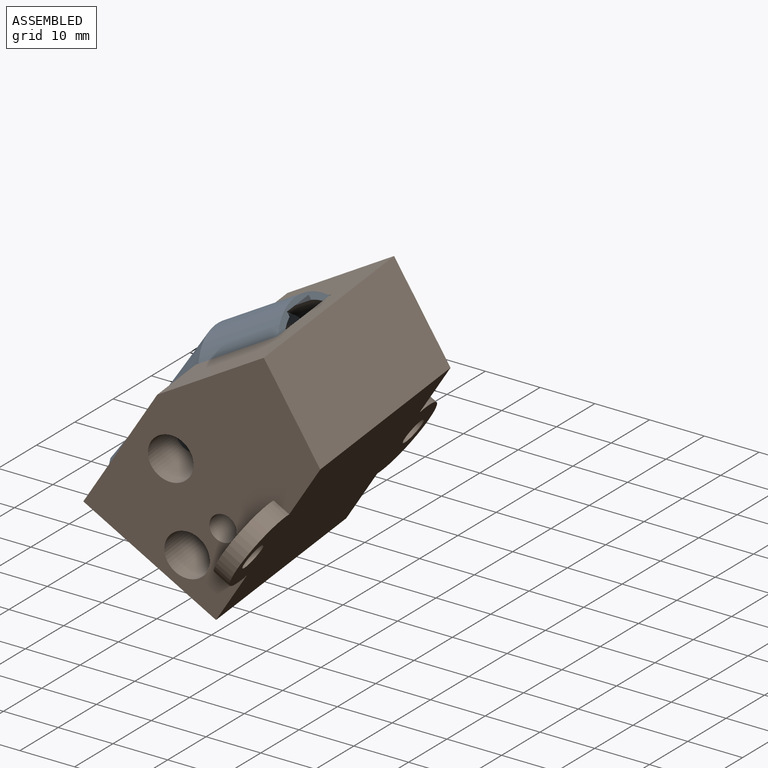
[diagram: assembled view]
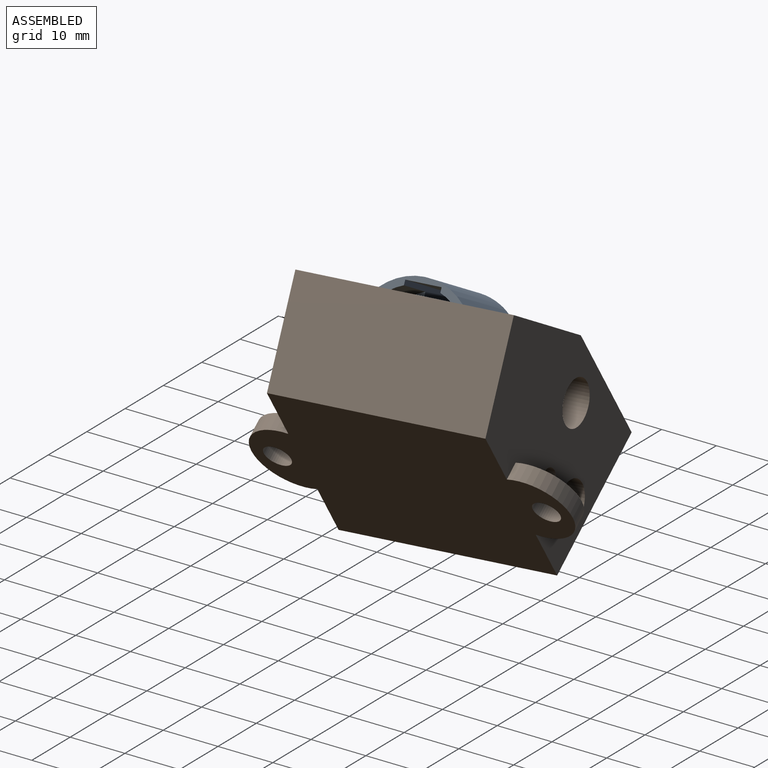
[diagram: assembled view, second angle]
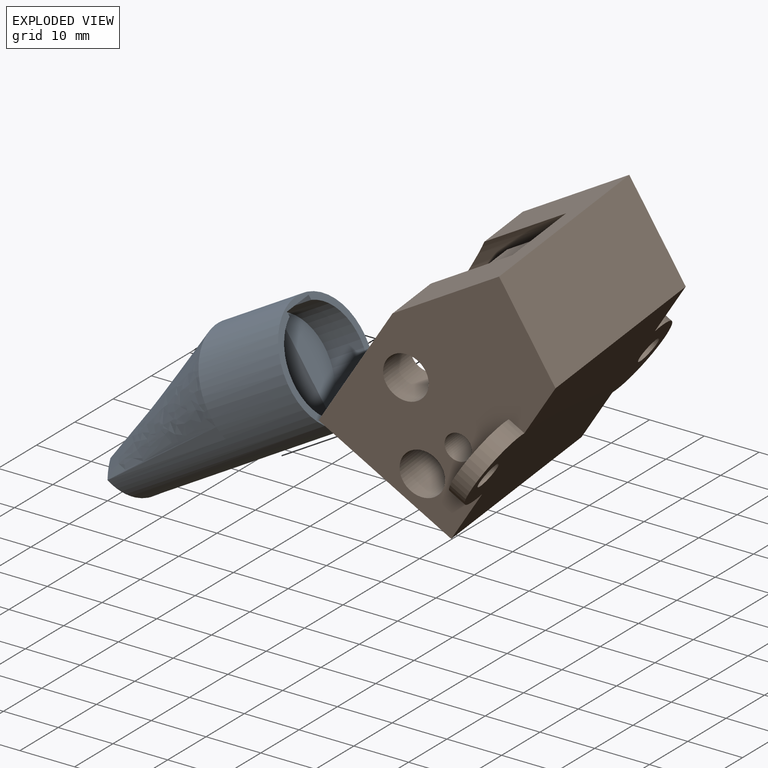
[diagram: exploded view]
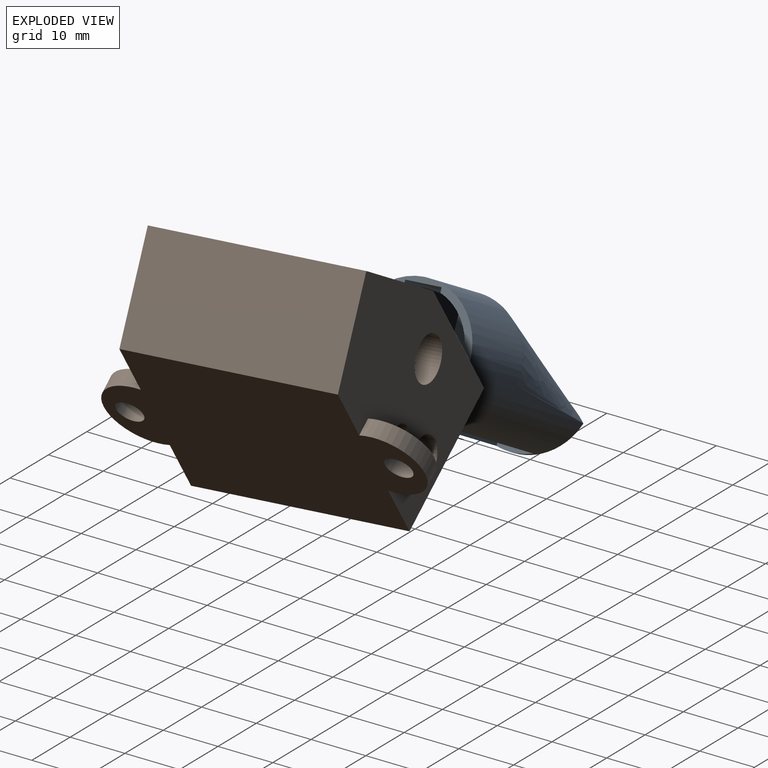
[diagram: exploded view, second angle]
ASSEMBLY  parts=2 mates=3
PART A: 27 faces, bbox 21.4x40.3x21.4 mm
  f0: plane 32.4x0.04mm, normal (0,0,1), area 0.8mm2, adj f4,f5,f21,f24
  f1: cylinder r=10.72mm len=40.32mm, axis (0,1,0), area 1436.5mm2, adj f2,f9,f10,f11,f12,f13,f14,f15
  f2: plane 21.44x20.94mm, normal (0,1,0), area 71.7mm2, adj f1,f3,f5,f6,f7,f19,f20,f21
  f3: cylinder r=9.4mm len=17.68mm, axis (0,1,0), area 159.5mm2, adj f2,f4,f5,f21
  f4: plane 17.68x6.22mm, normal (0,1,0), area 80mm2, adj f0,f3,f5,f21
  f5: plane 17.15x13.09mm, normal (-1,0,0), area 139.7mm2, adj f0,f2,f3,f4,f19,f24
  f6: plane 17.15x13.09mm, normal (1,0,0), area 139.7mm2, adj f2,f7,f8,f19,f23,f25
  f7: cylinder r=9.4mm len=17.68mm, axis (0,1,0), area 159.5mm2, adj f2,f6,f8,f20
  f8: plane 17.68x6.22mm, normal (0,1,0), area 80mm2, adj f6,f7,f20,f23
  f9: plane 0.08x0mm, normal (0,0,-1), area 0mm2, adj f1,f12,f14
  f10: plane 19.7x8.9mm, normal (0,-1,0), area 133.1mm2, adj f1,f14,f15,f16
  f11: plane 0.08x0mm, normal (0,0,-1), area 0mm2, adj f1,f13,f15
  f12: plane 2.41x0.72mm, normal (0,-1,0), area 0.1mm2, adj f1,f9,f14,f17
  f13: plane 2.41x0.72mm, normal (0,-1,0), area 0.1mm2, adj f1,f11,f15,f18
  f14: bspline ~24.13x13.2mm, area 197.2mm2, adj f1,f9,f10,f12,f16,f17
  f15: bspline ~24.13x13.2mm, area 197.2mm2, adj f1,f10,f11,f13,f16,f18
  f16: bspline ~24.13x13.81mm, area 348.9mm2, adj f1,f10,f14,f15
  f17: plane 24.05x2.4mm, normal (-0.96,0,0.28), area 30.1mm2, adj f1,f12,f14
  f18: plane 24.05x2.4mm, normal (0.96,0,0.28), area 30.1mm2, adj f1,f13,f15
  f19: plane 17.15x6.35mm, normal (0,0,1), area 108.9mm2, adj f2,f5,f6,f26
  f20: plane 39.33x6.85mm, normal (1,0,0), area 231.5mm2, adj f1,f2,f7,f8,f22,f23
  f21: plane 39.33x6.85mm, normal (-1,0,0), area 231.5mm2, adj f0,f1,f2,f3,f4,f22
  f22: plane 7.35x6.43mm, normal (0,1,0), area 46.1mm2, adj f1,f20,f21,f26
  f23: plane 32.4x0.04mm, normal (0,0,1), area 0.8mm2, adj f6,f8,f20,f25
  f24: plane 22.19x13.09mm, normal (-1,0,0), area 145.2mm2, adj f0,f5,f26
  f25: plane 22.19x13.09mm, normal (1,0,0), area 145.2mm2, adj f6,f23,f26
  f26: plane 22.19x13.09mm, normal (0,0.51,0.86), area 164.6mm2, adj f19,f22,f24,f25
PART B: 26 faces, bbox 43.8x56.1x35.5 mm
  f0: plane 43.84x35.54mm, normal (0,1,0), area 857.3mm2, adj f4,f5,f6,f7,f14,f15,f16,f18
  f1: cylinder r=10.95mm len=38.76mm, axis (-1,0,0), area 1527mm2, adj f2,f3,f4,f7,f14,f17,f18,f19
  f2: plane 21.9x18.09mm, normal (-1,0,0), area 260.9mm2, adj f1,f7,f9,f10,f11,f12,f19
  f3: plane 22.15x11.73mm, normal (-0.47,0,0.88), area 221.1mm2, adj f1,f7,f8,f14
  f4: plane 22.15x11.73mm, normal (-0.47,0,0.88), area 221.1mm2, adj f0,f1,f7,f14
  f5: plane 56.07x31.24mm, normal (0.47,0,-0.88), area 1527.9mm2, adj f0,f6,f8,f14,f20,f21,f23,f24
  f6: plane 38.1x18.99mm, normal (1,0,0), area 723.6mm2, adj f0,f5,f7,f8
  f7: plane 38.1x21.69mm, normal (0,0,1), area 565.3mm2, adj f0,f1,f2,f3,f4,f6,f8
  f8: plane 43.84x35.54mm, normal (0,-1,0), area 857.3mm2, adj f3,f5,f6,f7,f14,f15,f16,f17
  f9: plane 9.53x6.1mm, normal (0,0,1), area 58.1mm2, adj f2,f10,f12,f13
  f10: plane 12.7x9.53mm, normal (0,1,0), area 121mm2, adj f2,f9,f11,f13
  f11: plane 9.53x6.1mm, normal (0,0,-1), area 58.1mm2, adj f2,f10,f12,f13
  f12: plane 12.7x9.53mm, normal (0,-1,0), area 121mm2, adj f2,f9,f11,f13
  f13: plane 12.7x6.1mm, normal (-1,0,0), area 77.4mm2, adj f9,f10,f11,f12
  f14: plane 38.1x23.8mm, normal (-0.88,0,-0.47), area 912.7mm2, adj f0,f1,f3,f4,f5,f8
  f15: cylinder r=2.38mm len=38.1mm, axis (0,1,0), area 570mm2, adj f0,f8
  f16: cylinder r=3.97mm len=38.1mm, axis (0,1,0), area 950.1mm2, adj f0,f8
  f17: cylinder r=3.98mm len=10.09mm, axis (0,1,0), area 218.5mm2, adj f1,f8
  f18: cylinder r=3.98mm len=10.09mm, axis (0,1,0), area 218.5mm2, adj f0,f1
  f19: plane 6.4x0.9mm, normal (-0.47,0,0.88), area 4.4mm2, adj f1,f2
  f20: cylinder r=2.39mm len=5.71mm, axis (0.47,0,-0.88), area 47.6mm2, adj f5,f22
  f21: cylinder r=7.34mm len=14.45mm, axis (0.47,0,-0.88), area 83.7mm2, adj f5,f8,f22
  f22: plane 12.97x8.98mm, normal (-0.47,0,0.88), area 90.6mm2, adj f8,f20,f21
  f23: cylinder r=7.34mm len=14.45mm, axis (0.47,0,-0.88), area 83.7mm2, adj f0,f5,f25
  f24: cylinder r=2.39mm len=5.71mm, axis (0.47,0,-0.88), area 47.6mm2, adj f5,f25
  f25: plane 12.97x8.98mm, normal (-0.47,0,0.88), area 90.6mm2, adj f0,f23,f24
PLACE A rot(axis=(0.67,0.71,0.2),161.5deg) t=(-223.34,40.53,-27.26)mm
PLACE B rot(axis=(0.11,-0.99,0.12),30.1deg) t=(-249.82,-16.52,-79.59)mm
MATE planar B.f2 <-> A.f2  axis (-0.87,-0.04,-0.5) through (-222.77,40.58,-28.26)mm
MATE cylindrical B.f1 <-> A.f3  axis (-0.87,-0.04,-0.5) through (-257.15,38.84,-46.61)mm
MATE planar B.f10 <-> A.f5  axis (-0.07,1,0.04) through (-227.7,43.49,-29.49)mm
